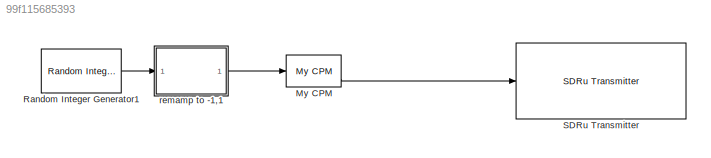
MODEL slx_99f115685393
KIND model
BLOCK [Reference] My CPM  REF=siglabs_lib/My CPM
  ClockUpDownFrequency = 100
  FilterBufferLength = 3
  Ports = [1, 3]
  RotationsPerSym = 1
  SampsPerSym = 10
  SourceBlock = siglabs_lib/My CPM
BLOCK [Reference] Random Integer Generator1  REF=commrandsrc2/Random Integer
Generator
  Ports = [0, 1]
  SourceBlock = commrandsrc2/Random Integer\nGenerator
  SourceType = Random Integer Generator
  Ts = 5.1200e-05
  frameBased = off
  mul = 2
  orient = off
  outDataType = double
  sampPerFrame = 1024
  seed = 42
BLOCK [Reference] SDRu Transmitter  REF=commsdrhw_v2/SDRu Transmitter
  EnableBurstMode = on
  HOST_CONTROL_PORT = 30001
  HOST_DATA_PORT = 30000
  NumFramesInBurst = 40000
  Ports = [1]
  SourceBlock = commsdrhw_v2/SDRu Transmitter
  SourceType = SDRu Transmitter
  USRP2_CONTROL_PORT = 32768
  USRP2_DATA_PORT = 32769
  USRP2_IP = '192.168.10.2'
  USRP2_IP_NUM = [49 57 50 46 49 54 56 46 49 48 46 50]
  USRP_ID = '192.168.10.2'
  USRP_IP_X300 = '192.168.10.2'
  USRP_IP_X310 = '192.168.10.2'
  USRP_serialNumB200 = ''
  USRP_serialNumB210 = ''
  bufferMode = Guaranteed contiguous buffer
  centerFrequency = 915E6
  centerFrequencySrc = Dialog
  dboardInfo = dbid: 0\n          dbName: 'no db found'\n         freqMin: 0\n         freqMax: 0\n         gainMin: 0\n         gainMax: 0\n    gainStepSize: 0
  decimInterp = 512
  decimInterpSrc = Dialog
  frameLength = 362
  gain = 8
  gainSrc = Dialog
  loOffset = 0
  loOffsetSrc = Dialog
  masterClkRateB200 = 32e6
  masterClkRateB210 = 32e6
  masterClkRateParam = 100e6
  masterClkRateX300 = 200e6
  masterClkRateX310 = 200e6
  outputDatatype = int16
  overrunUnderrunPort = off
  platform = N200/N210/USRP2
  rxtx = tx
  sampleTime = 1
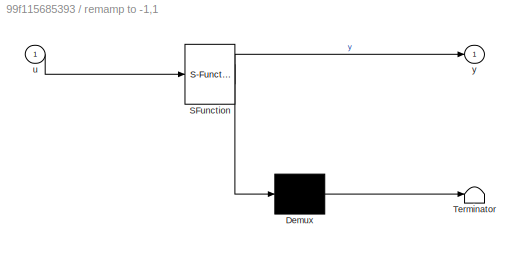
BLOCK [SubSystem] remamp to -1,1
  ErrorFcn = Stateflow.Translate.translate
  PermitHierarchicalResolution = ExplicitOnly
  Ports = [1, 1]
  RequestExecContextInheritance = off
  SFBlockType = MATLAB Function
  TreatAsAtomicUnit = on
BLOCK [Demux] remamp to -1,1/ Demux 
  Outputs = 1
  Ports = [1, 1]
BLOCK [S-Function] remamp to -1,1/ SFunction 
  EnableBusSupport = on
  FunctionName = sf_sfun
  PortCounts = [1 2]
  Ports = [1, 2]
  Tag = Stateflow S-Function usrp_tx 2
BLOCK [Terminator] remamp to -1,1/ Terminator 
BLOCK [Inport] remamp to -1,1/u
  IconDisplay = Port number
BLOCK [Outport] remamp to -1,1/y
  IconDisplay = Port number
LINE My CPM:3 -> SDRu Transmitter:1
LINE Random Integer Generator1:1 -> remamp to -1,1:1
LINE remamp to -1,1:1 -> My CPM:1
CHART remamp to -1,1 states=1 transitions=1
  STATE_LABEL 'eML_blk_kernel()'
  STATE_LABEL 'SCRIPT:\nfunction y = fcn(u)\n%#codegen\n\ny = (u*2)-1;'
